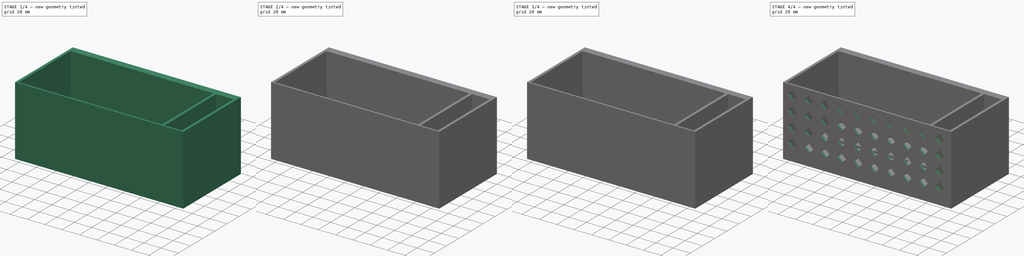
[diagram: build sequence overview — one tinted view per stage of 4, left to right]
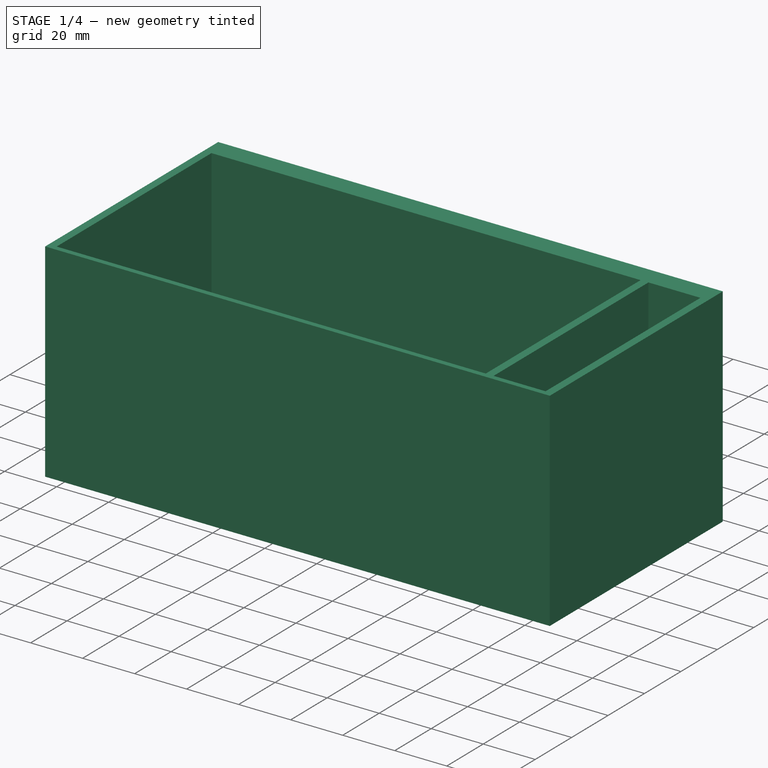
[diagram: stage 1 of 4 — iso view after this stage's code; geometry added in this stage tinted green]
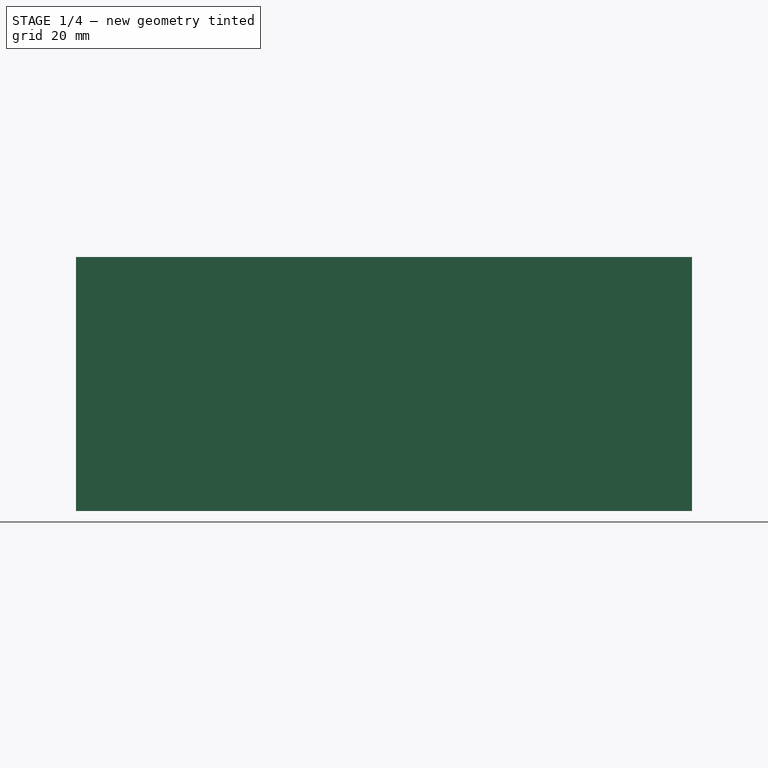
[diagram: stage 1 of 4 — front view after this stage's code; geometry added in this stage tinted green]
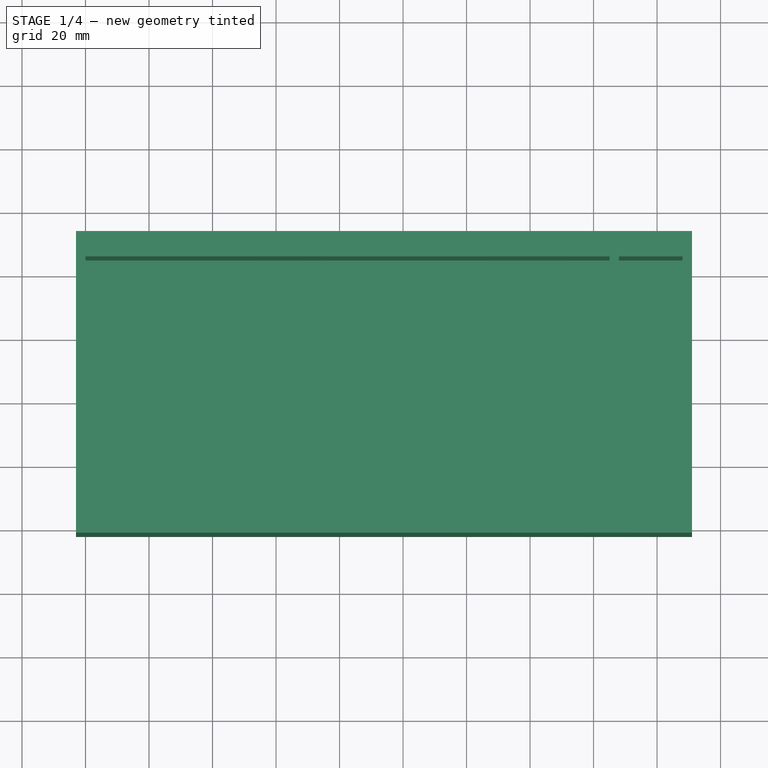
[diagram: stage 1 of 4 — top view after this stage's code; geometry added in this stage tinted green]
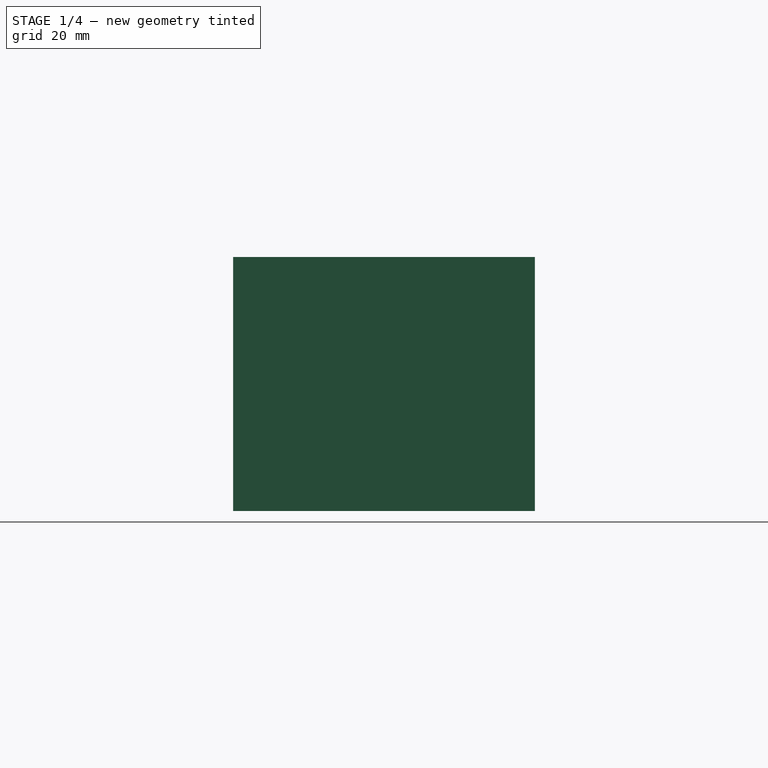
[diagram: stage 1 of 4 — right view after this stage's code; geometry added in this stage tinted green]
FCSTD DOCUMENT  (FreeCAD 1.0R39109 (Git))
Label: washingLiquidRack
License: All rights reserved
LicenseURL: https://en.wikipedia.org/wiki/All_rights_reserved
objects: PartDesign::LinearPattern×5, PartDesign::SubtractiveBox×3, PartDesign::Pad×2, PartDesign::MultiTransform×2, Sketcher::SketchObject×1, PartDesign::Fillet×1, PartDesign::Body×1
note: 35 computed .brp shape members not serialized (recipe doc carries the construction recipe); baked Part::Feature solids carry a one-line shape summary decoded from their .brp

FEATURE [Sketcher::SketchObject] Sketch
  ArcFitTolerance = 1e-06
  AttachmentSupport = -> [XY_Plane]
  FullyConstrained = true
  MakeInternals = false
  MapMode = 5
  sketch-geometry (12):
    g0: LineSegment StartX=0 StartY=0 StartZ=0 EndX=165 EndY=0 EndZ=0
    g1: LineSegment StartX=165 StartY=0 StartZ=0 EndX=165 EndY=85 EndZ=0
    g2: LineSegment StartX=165 StartY=85 StartZ=0 EndX=0 EndY=85 EndZ=0
    g3: LineSegment StartX=0 StartY=85 StartZ=0 EndX=0 EndY=0 EndZ=0
    g4: LineSegment StartX=-3 StartY=93 StartZ=0 EndX=-3 EndY=-2 EndZ=0
    g5: LineSegment StartX=-3 StartY=-2 StartZ=0 EndX=191 EndY=-2 EndZ=0
    g6: LineSegment StartX=191 StartY=-2 StartZ=0 EndX=191 EndY=93 EndZ=0
    g7: LineSegment StartX=191 StartY=93 StartZ=0 EndX=-3 EndY=93 EndZ=0
    g8: LineSegment StartX=168 StartY=0 StartZ=0 EndX=188 EndY=0 EndZ=0
    g9: LineSegment StartX=188 StartY=0 StartZ=0 EndX=188 EndY=85 EndZ=0
    g10: LineSegment StartX=188 StartY=85 StartZ=0 EndX=168 EndY=85 EndZ=0
    g11: LineSegment StartX=168 StartY=85 StartZ=0 EndX=168 EndY=0 EndZ=0
  constraints (35):
    c: Coincident(g0,g1)
    c: Coincident(g1,g2)
    c: Coincident(g2,g3)
    c: Coincident(g3,g0)
    c: Horizontal(g0)
    c: Horizontal(g2)
    c: Vertical(g1)
    c: Vertical(g3)
    c: Coincident(g0,g-1)
    c: DistanceY(g3,g3) = 85
    c: DistanceX(g0,g0) = 165
    c: Coincident(g4,g5)
    c: Coincident(g5,g6)
    c: Coincident(g6,g7)
    c: Coincident(g7,g4)
    c: Vertical(g4)
    c: Vertical(g6)
    c: Horizontal(g5)
    c: Horizontal(g7)
    c: Coincident(g8,g9)
    c: Coincident(g9,g10)
    c: Coincident(g10,g11)
    c: Coincident(g11,g8)
    c: Horizontal(g8)
    c: Horizontal(g10)
    c: Vertical(g9)
    c: Vertical(g11)
    c: PointOnObject(g8,g-1)
    c: DistanceX(g8,g8) = 20
    c: Equal(g11,g3)
    c: Distance(g5,g0) = 2
    c: Distance(g1,g11) = 3
    c: Distance(g9,g6) = 3
    c: Distance(g3,g4) = 3
    c: Distance(g2,g7) = 8
FEATURE [PartDesign::Pad] Pad
  Direction = (0,0,1)
  Length = 80
  Length2 = 10
  Profile = -> Sketch
  ReferenceAxis = -> Sketch [N_Axis]
  Refine = true
  Suppressed = false
  Type = 0
FEATURE [PartDesign::Pad] Pad001
  BaseFeature = -> Pad
  Direction = (0,0,1)
  Length = 5
  Length2 = 10
  Profile = -> Sketch [Edge6,Edge7,Edge8,Edge5]
  ReferenceAxis = -> Sketch [N_Axis]
  Refine = true
  Suppressed = false
  Type = 0
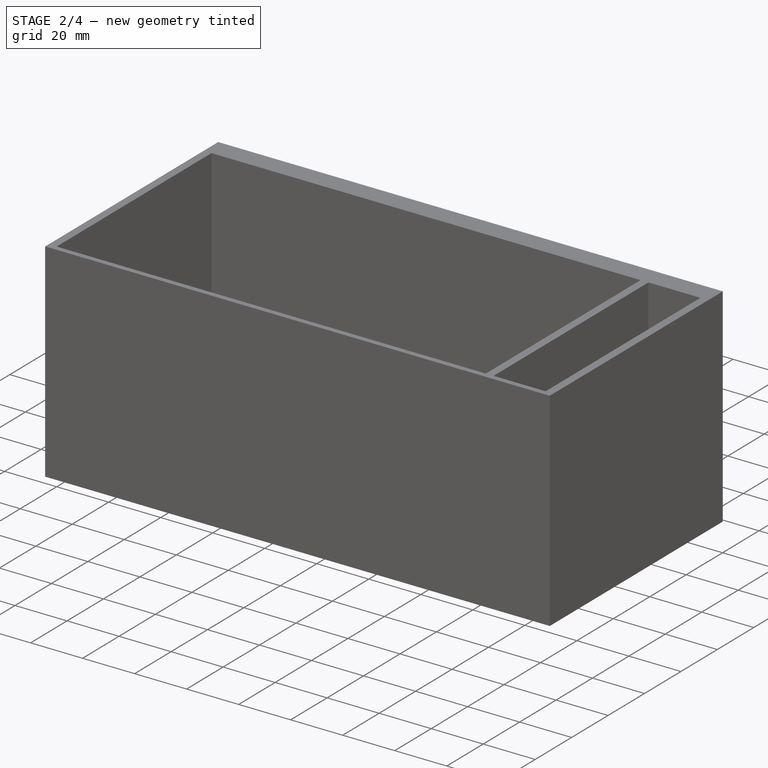
[diagram: stage 2 of 4 — iso view after this stage's code; geometry added in this stage tinted green]
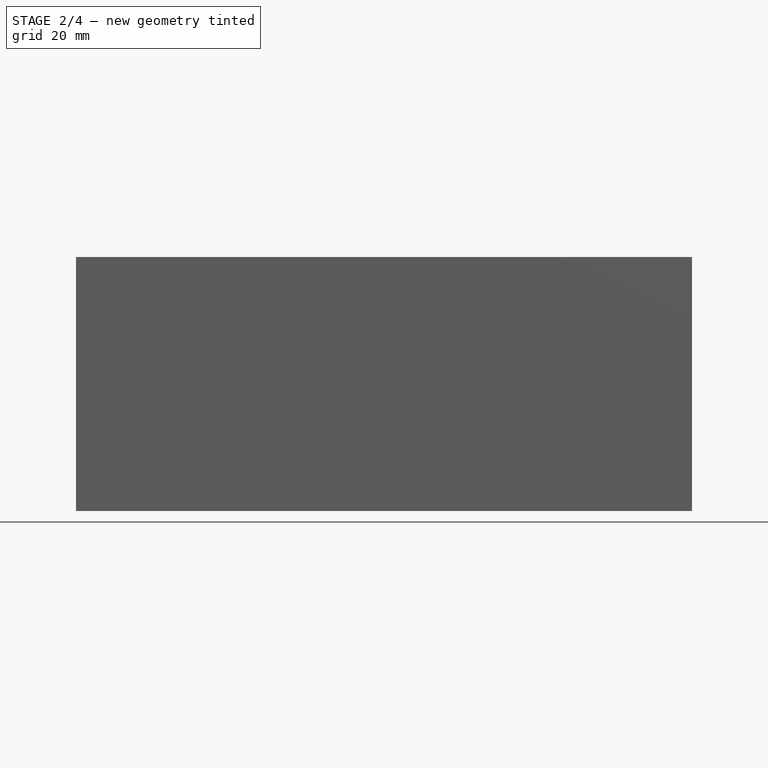
[diagram: stage 2 of 4 — front view after this stage's code; geometry added in this stage tinted green]
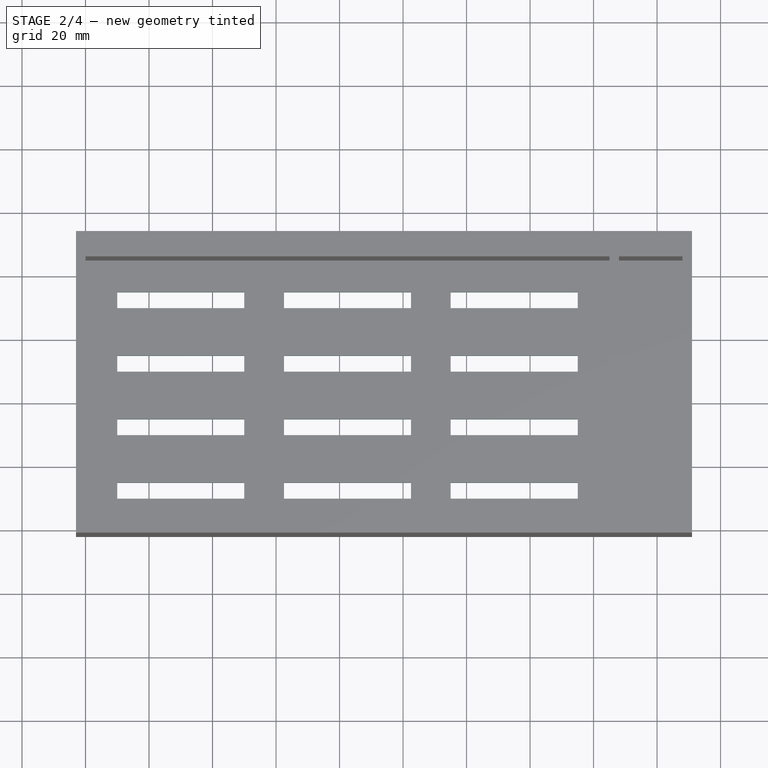
[diagram: stage 2 of 4 — top view after this stage's code; geometry added in this stage tinted green]
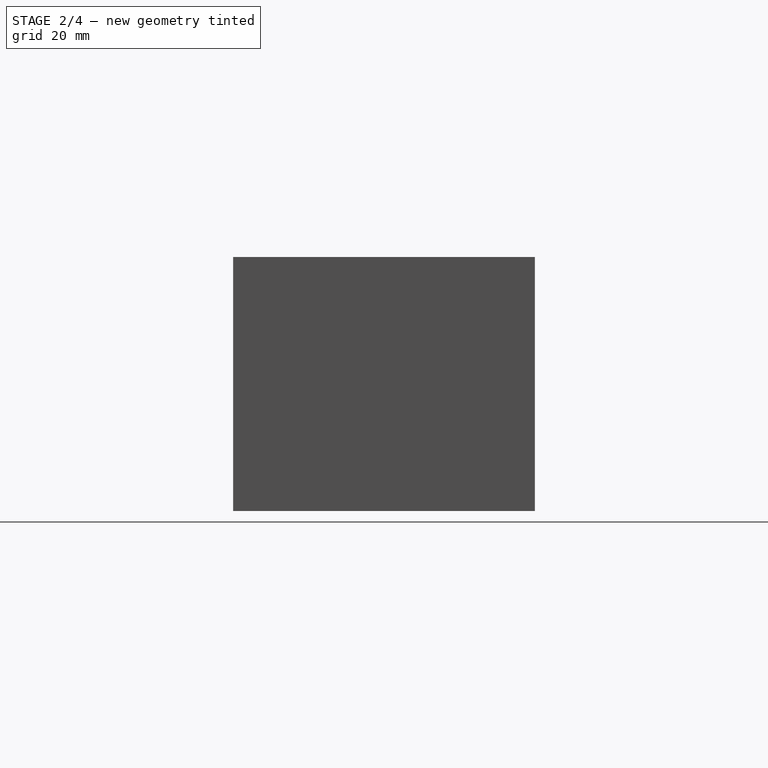
[diagram: stage 2 of 4 — right view after this stage's code; geometry added in this stage tinted green]
FEATURE [PartDesign::SubtractiveBox] Box
  AttacherType = Attacher::AttachEngine3D
  AttachmentOffset = pos=(10,10,0) rot=(0,0,1;0rad)
  AttachmentSupport = -> [XY_Plane]
  BaseFeature = -> Pad001
  Height = 9
  Length = 40
  MapMode = 5
  Placement = pos=(10,10,0) rot=(0,0,1;0rad)
  Refine = true
  Suppressed = false
  Width = 5
FEATURE [PartDesign::LinearPattern] LinearPattern
  Direction = -> X_Axis
  Length = 105
  Mode = 0
  Occurrences = 3
  Offset = 52.5
  Placement = pos=(10,10,0) rot=(0,0,1;0rad)
  Refine = true
  Suppressed = false
  TransformMode = 0
FEATURE [PartDesign::LinearPattern] LinearPattern001
  Direction = -> Y_Axis
  Length = 60
  Mode = 0
  Occurrences = 4
  Offset = 20
  Placement = pos=(10,10,0) rot=(0,0,1;0rad)
  Refine = true
  Suppressed = false
  TransformMode = 0
FEATURE [PartDesign::MultiTransform] MultiTransform
  BaseFeature = -> Box
  Originals = -> [Box]
  Placement = pos=(10,10,0) rot=(0,0,1;0rad)
  Refine = true
  Suppressed = false
  TransformMode = 0
  Transformations = -> [LinearPattern,LinearPattern001]
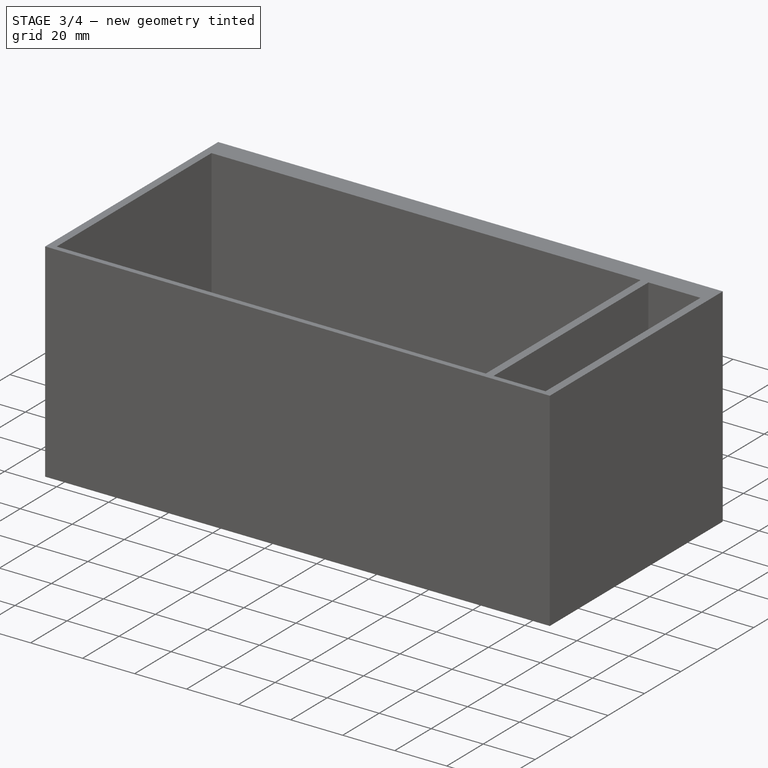
[diagram: stage 3 of 4 — iso view after this stage's code; geometry added in this stage tinted green]
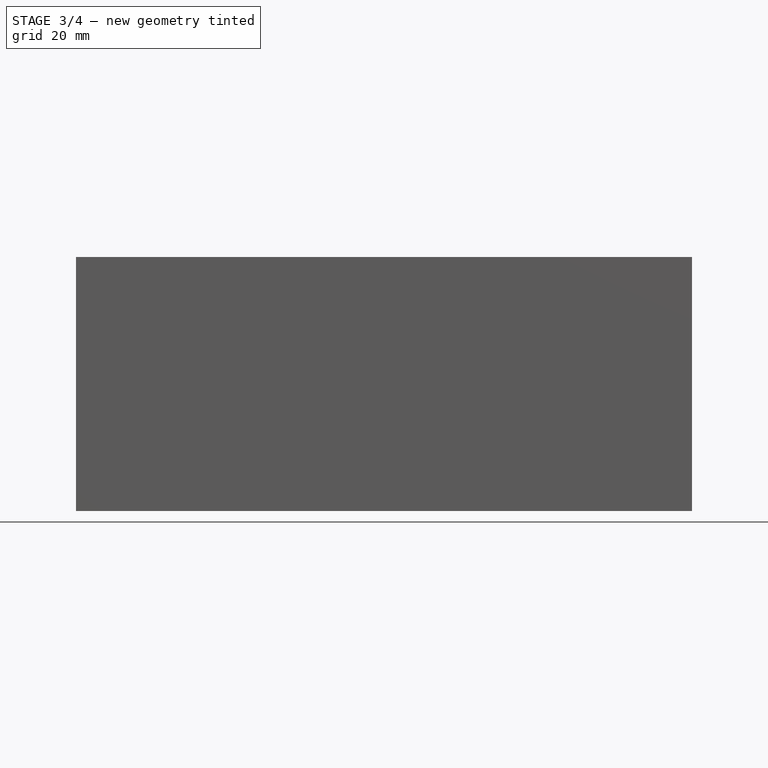
[diagram: stage 3 of 4 — front view after this stage's code; geometry added in this stage tinted green]
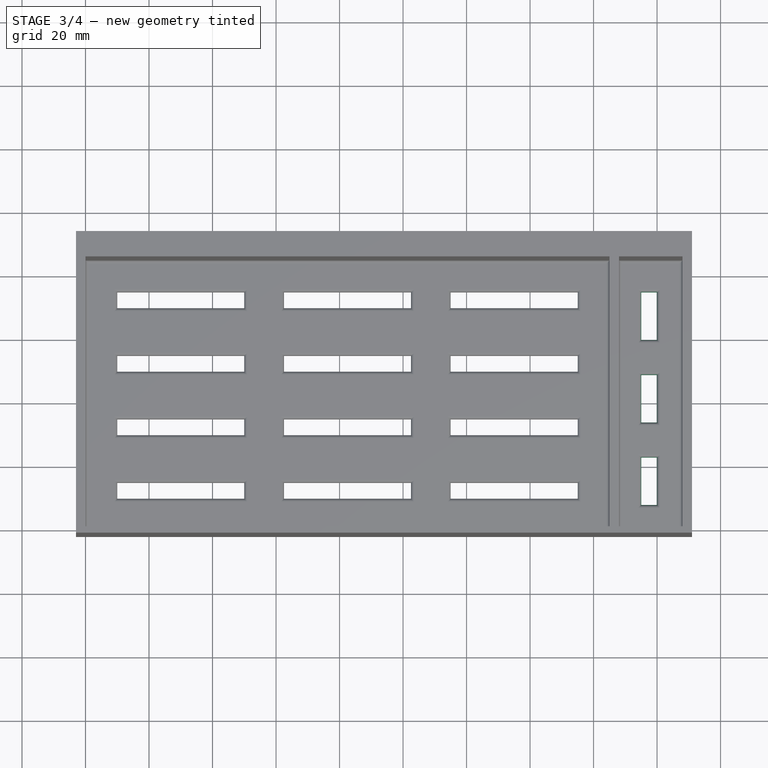
[diagram: stage 3 of 4 — top view after this stage's code; geometry added in this stage tinted green]
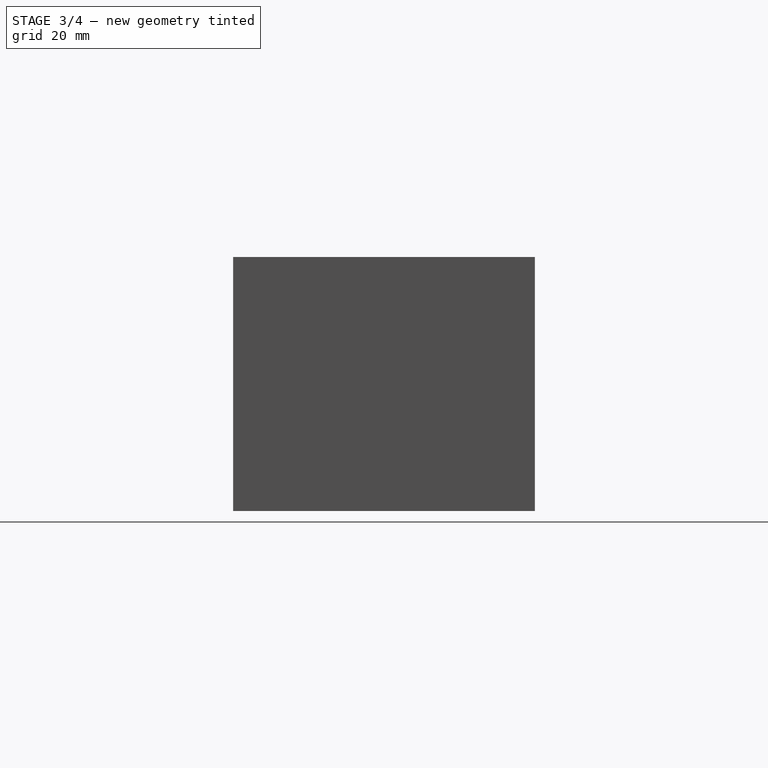
[diagram: stage 3 of 4 — right view after this stage's code; geometry added in this stage tinted green]
FEATURE [PartDesign::SubtractiveBox] Box001
  AttacherType = Attacher::AttachEngine3D
  AttachmentOffset = pos=(175,8,0) rot=(0,0,1;0rad)
  AttachmentSupport = -> [XY_Plane]
  BaseFeature = -> MultiTransform
  Height = 10
  Length = 5
  MapMode = 5
  Placement = pos=(175,8,0) rot=(0,0,1;0rad)
  Refine = true
  Suppressed = false
  Width = 15
FEATURE [PartDesign::LinearPattern] LinearPattern002
  BaseFeature = -> Box001
  Direction = -> Y_Axis
  Length = 52
  Mode = 0
  Occurrences = 3
  Offset = 26
  Originals = -> [Box001]
  Placement = pos=(175,8,0) rot=(0,0,1;0rad)
  Refine = true
  Suppressed = false
  TransformMode = 0
FEATURE [PartDesign::Fillet] Fillet
  Base = -> LinearPattern002 [Face15,Face16]
  BaseFeature = -> LinearPattern002
  Placement = pos=(175,8,0) rot=(0,0,1;0rad)
  Radius = 1
  Refine = true
  SupportTransform = false
  Suppressed = false
  UseAllEdges = false
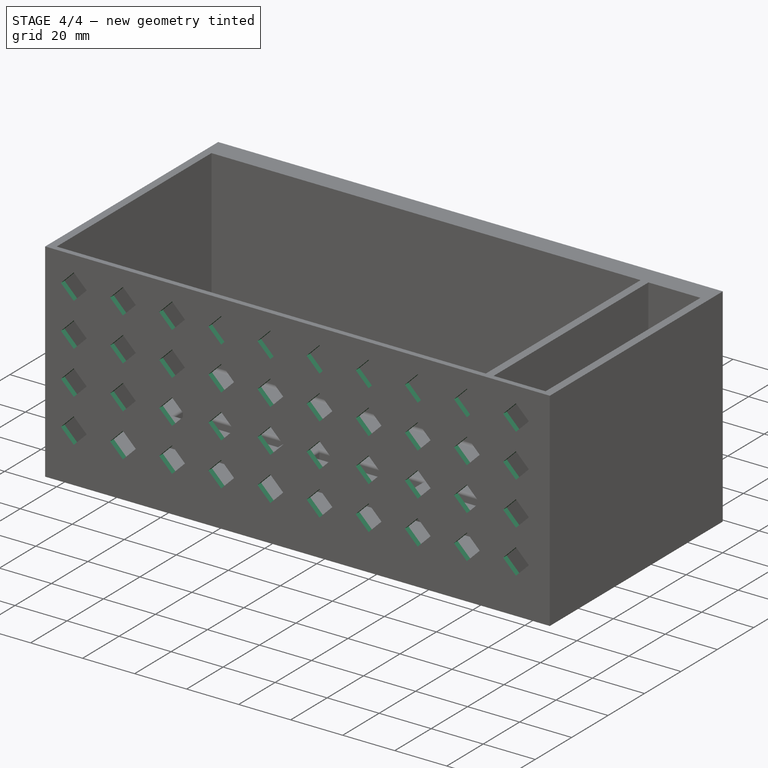
[diagram: stage 4 of 4 — iso view after this stage's code; geometry added in this stage tinted green]
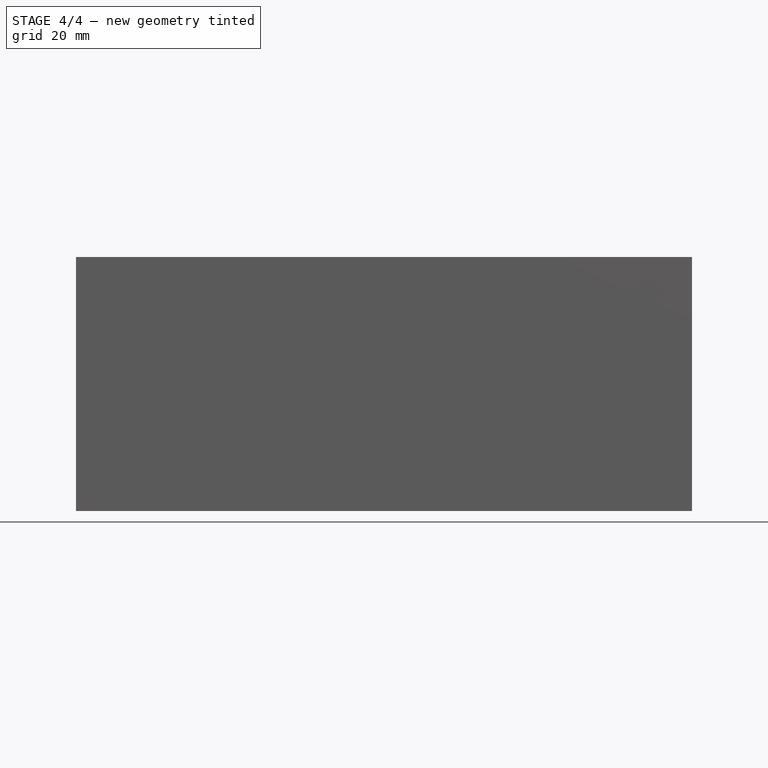
[diagram: stage 4 of 4 — front view after this stage's code; geometry added in this stage tinted green]
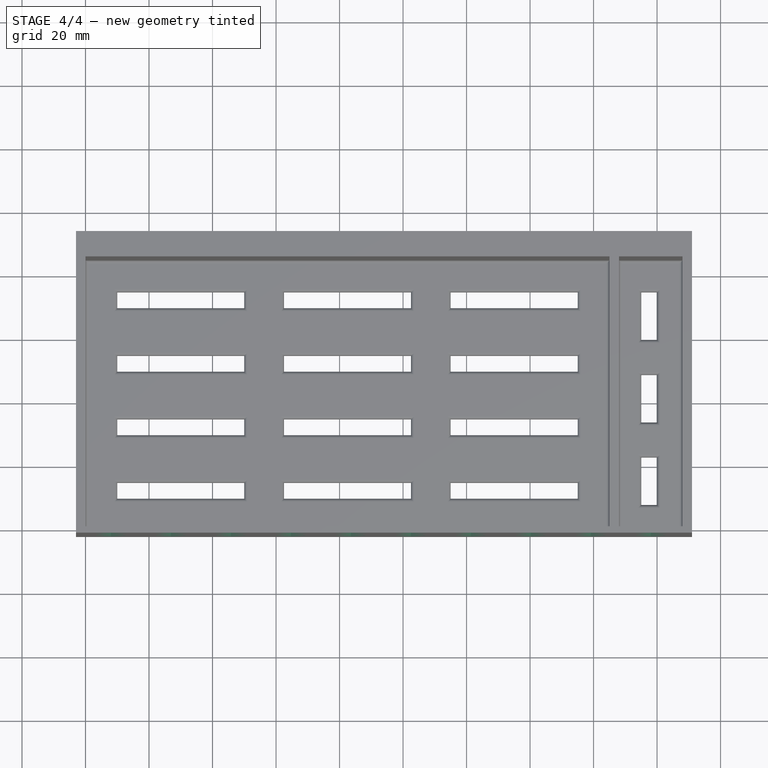
[diagram: stage 4 of 4 — top view after this stage's code; geometry added in this stage tinted green]
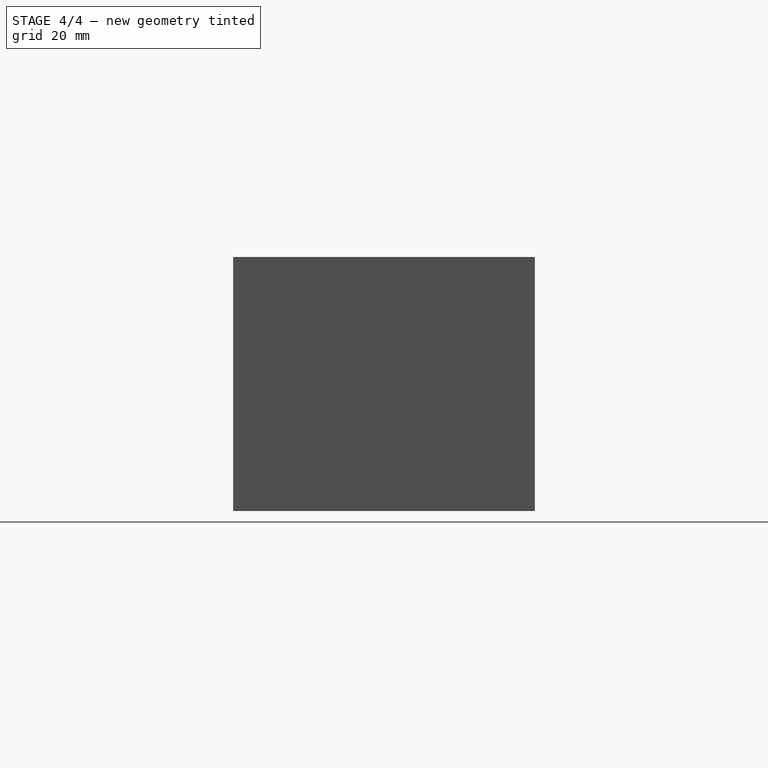
[diagram: stage 4 of 4 — right view after this stage's code; geometry added in this stage tinted green]
FEATURE [PartDesign::LinearPattern] LinearPattern003
  Direction = -> Z_Axis
  Length = 50
  Mode = 0
  Occurrences = 4
  Offset = 16.6667
  Placement = pos=(178,-2,14) rot=(0.281085,0.678598,0.678598;3.68962rad)
  Refine = true
  Suppressed = false
  TransformMode = 0
FEATURE [PartDesign::LinearPattern] LinearPattern004
  Direction = -> X_Axis
  Length = 170
  Mode = 0
  Occurrences = 10
  Offset = 18.8889
  Placement = pos=(178,-2,14) rot=(0.281085,0.678598,0.678598;3.68962rad)
  Refine = true
  Reversed = true
  Suppressed = false
  TransformMode = 0
FEATURE [PartDesign::SubtractiveBox] Box002
  AttacherType = Attacher::AttachEngine3D
  AttachmentOffset = pos=(-3,14,0) rot=(0,0,1;0.785398rad)
  AttachmentSupport = -> [Fillet]
  BaseFeature = -> Fillet
  Height = 10
  Length = 7
  MapMode = 5
  Placement = pos=(178,-2,14) rot=(0.281085,0.678598,0.678598;3.68962rad)
  Refine = true
  Suppressed = false
  Width = 7
FEATURE [PartDesign::MultiTransform] MultiTransform001
  BaseFeature = -> Box002
  Originals = -> [Box002]
  Placement = pos=(178,-2,14) rot=(0.281085,0.678598,0.678598;3.68962rad)
  Refine = true
  Suppressed = false
  TransformMode = 0
  Transformations = -> [LinearPattern003,LinearPattern004]
FEATURE [PartDesign::Body] Body
  AllowCompound = false
  Group = -> [Sketch,Pad,Pad001,Box,MultiTransform,LinearPattern,LinearPattern001,Box001,LinearPattern002,Fillet,Box002,MultiTransform001,LinearPattern003,LinearPattern004]
  Origin = -> Origin
  Tip = -> MultiTransform001
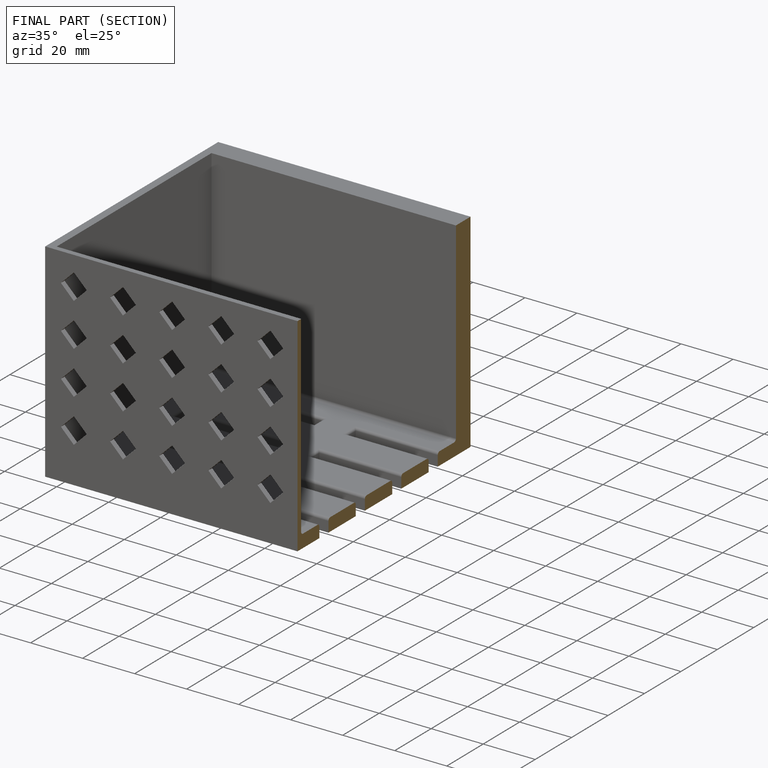
[diagram: finished part — half-section view (interior)]
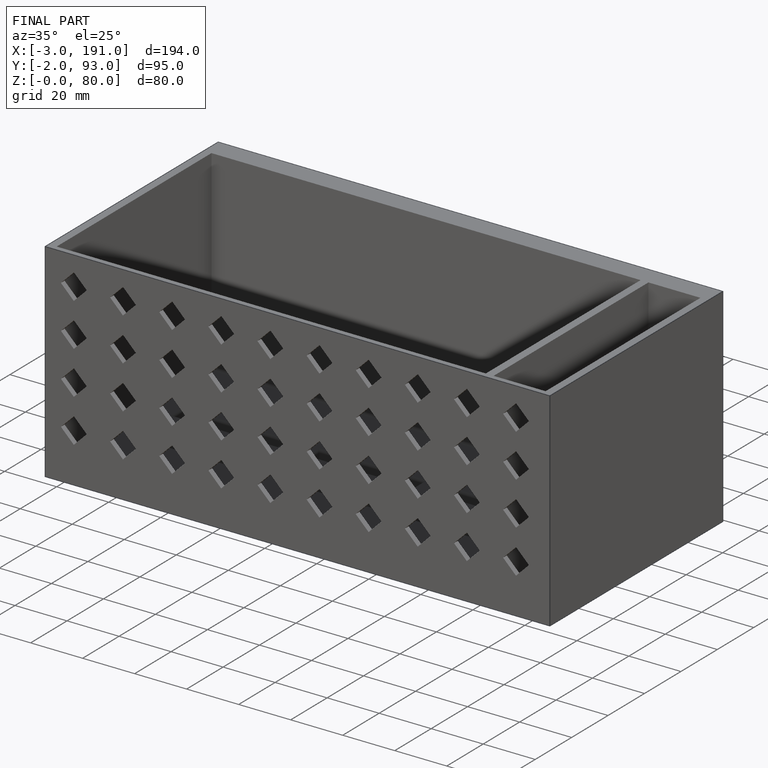
[diagram: finished part — iso view with bounding-box wireframe]
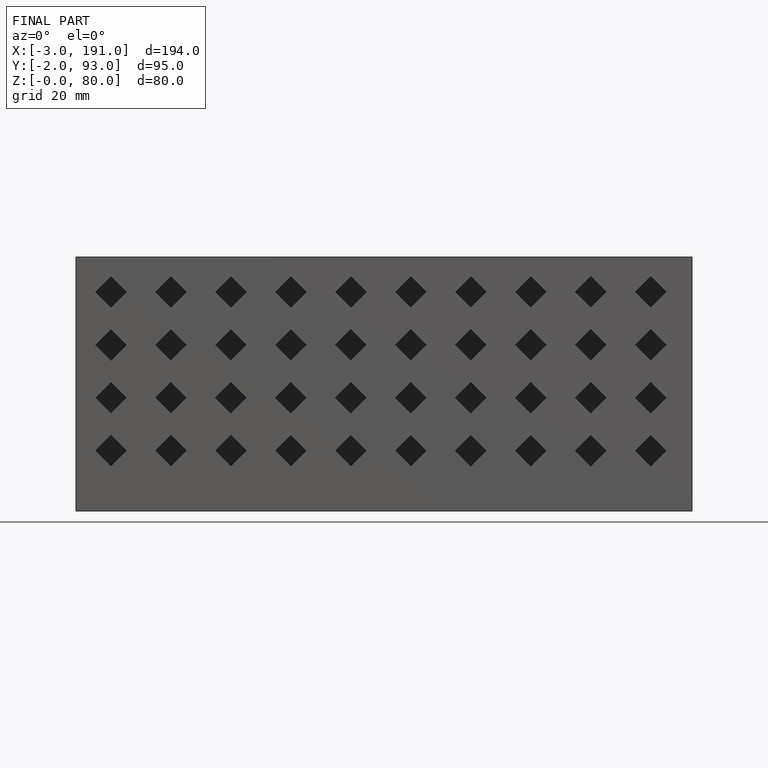
[diagram: finished part — front view with bounding-box wireframe]
